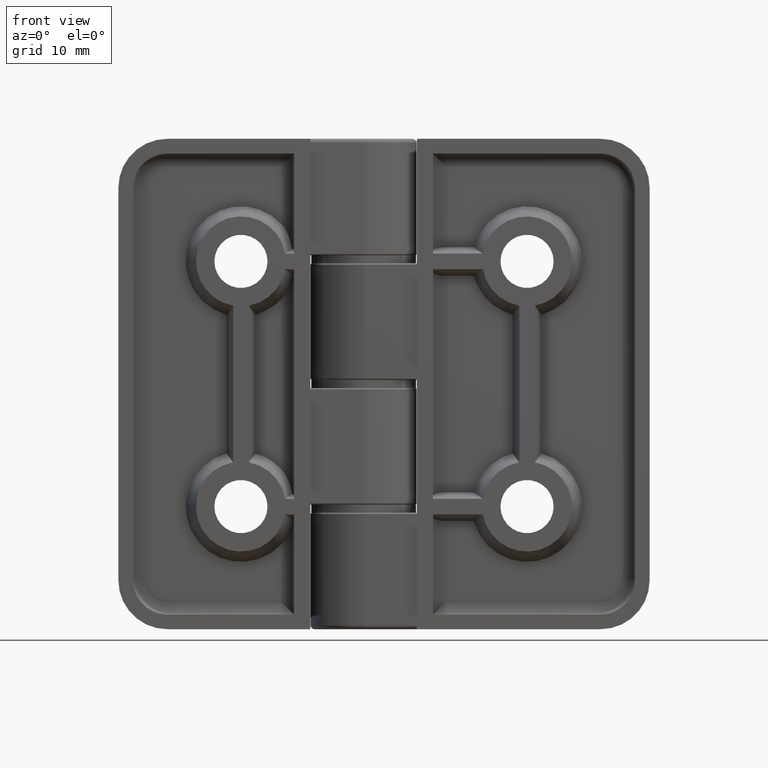
[diagram: clean part render]
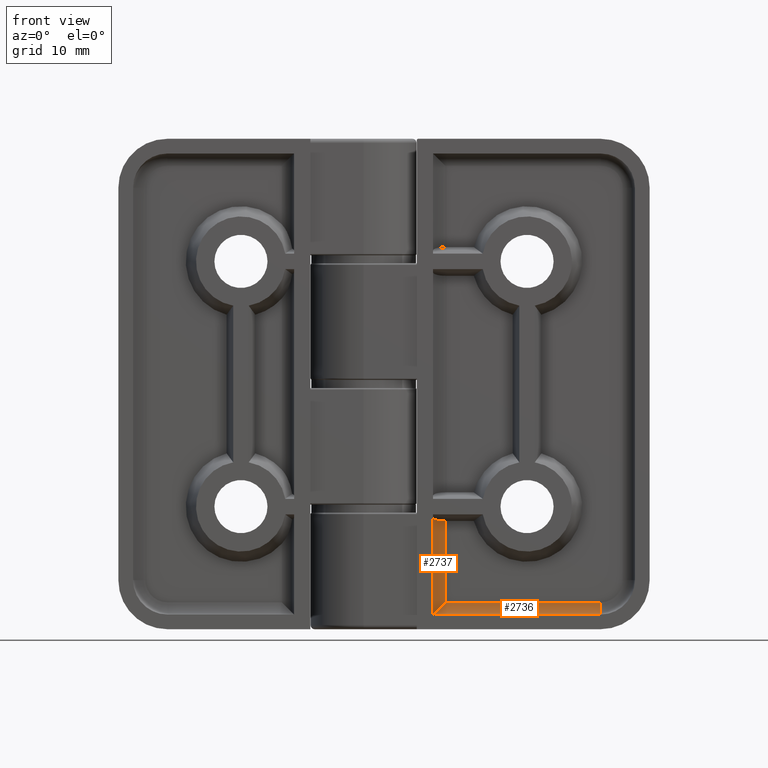
[diagram: same view with one multi-face feature highlighted, each face labeled with its STEP entity id]
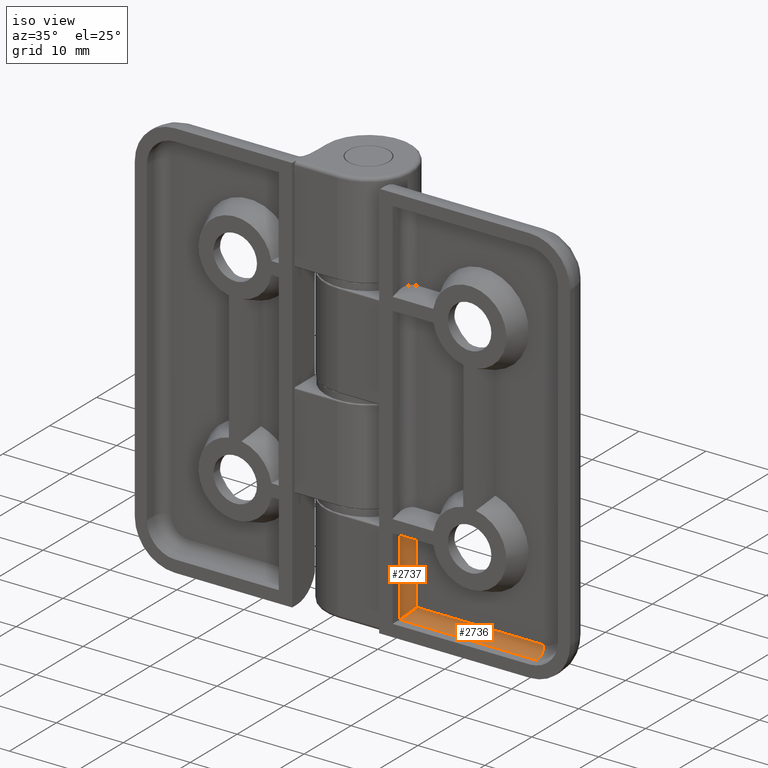
[diagram: same view with one multi-face feature highlighted, each face labeled with its STEP entity id]
A machine part, front view. The highlighted faces form ONE feature: a constant-radius fillet chain: 2 tangent blend faces with common blend radius 1.5 mm. The faces share edges in the B-rep.
A second angle (iso view) of the same feature is appended — it is thin or edge-on in the first view.
Their STEP definitions:
[1] entity #2737 (Cylinder):
#467=FACE_OUTER_BOUND('',#657,.T.);
#657=EDGE_LOOP('',(#2273,#2274,#2275,#2276));
#901=LINE('',#5180,#1079);
#902=LINE('',#5183,#1080);
#1079=VECTOR('',#3706,9.95);
#1080=VECTOR('',#3709,11.8519237886467);
#1138=ELLIPSE('',#3021,2.12132034355965,1.5);
#1139=ELLIPSE('',#3023,1.55291427061512,1.5);
#1330=VERTEX_POINT('',#5173);
#1331=VERTEX_POINT('',#5175);
#1332=VERTEX_POINT('',#5179);
#1333=VERTEX_POINT('',#5181);
#1668=EDGE_CURVE('',#1331,#1330,#1138,.T.);
#1669=EDGE_CURVE('',#1331,#1332,#901,.T.);
#1670=EDGE_CURVE('',#1333,#1332,#1139,.T.);
#1671=EDGE_CURVE('',#1333,#1330,#902,.T.);
#2273=ORIENTED_EDGE('',*,*,#1669,.T.);
#2274=ORIENTED_EDGE('',*,*,#1670,.F.);
#2275=ORIENTED_EDGE('',*,*,#1671,.T.);
#2276=ORIENTED_EDGE('',*,*,#1668,.F.);
#2612=CYLINDRICAL_SURFACE('',#3022,1.5);
#2737=ADVANCED_FACE('',(#467),#2612,.F.);
#3021=AXIS2_PLACEMENT_3D('',#5177,#3702,#3703);
#3022=AXIS2_PLACEMENT_3D('',#5178,#3704,#3705);
#3023=AXIS2_PLACEMENT_3D('',#5182,#3707,#3708);
#3702=DIRECTION('center_axis',(0.707106781186547,0.,-0.707106781186548));
#3703=DIRECTION('ref_axis',(-0.707106781186548,-6.28036983473509E-16,-0.707106781186547));
#3704=DIRECTION('center_axis',(9.84240270057763E-18,4.37090483832564E-33,
-1.));
#3705=DIRECTION('ref_axis',(0.707106781186548,0.707106781186547,6.95962969274724E-18));
#3706=DIRECTION('',(9.84240270057763E-18,4.37090483832564E-33,-1.));
#3707=DIRECTION('center_axis',(3.51633040578987E-17,-0.258819045102521,
0.965925826289068));
#3708=DIRECTION('ref_axis',(3.57464364142068E-16,0.965925826289068,0.258819045102521));
#3709=DIRECTION('',(-9.84240270057763E-18,-4.37090483832564E-33,1.));
#5173=CARTESIAN_POINT('',(-8.5,-5.5,28.2));
#5175=CARTESIAN_POINT('',(-10.,-4.,26.7));
#5177=CARTESIAN_POINT('Origin',(-10.,-5.5,26.7));
#5178=CARTESIAN_POINT('Origin',(-10.,-5.5,14.1));
#5179=CARTESIAN_POINT('',(-10.,-4.,16.75));
#5180=CARTESIAN_POINT('',(-10.,-4.,14.1));
#5181=CARTESIAN_POINT('',(-8.5,-5.5,16.3480762113533));
#5182=CARTESIAN_POINT('Origin',(-10.,-5.5,16.3480762113533));
#5183=CARTESIAN_POINT('',(-8.5,-5.5,14.1));
[2] entity #2736 (Cylinder):
#284=CIRCLE('',#3017,1.5);
#466=FACE_OUTER_BOUND('',#656,.T.);
#656=EDGE_LOOP('',(#2269,#2270,#2271,#2272));
#899=LINE('',#5174,#1077);
#900=LINE('',#5176,#1078);
#1077=VECTOR('',#3700,20.5);
#1078=VECTOR('',#3701,19.);
#1138=ELLIPSE('',#3021,2.12132034355965,1.5);
#1328=VERTEX_POINT('',#5167);
#1329=VERTEX_POINT('',#5168);
#1330=VERTEX_POINT('',#5173);
#1331=VERTEX_POINT('',#5175);
#1663=EDGE_CURVE('',#1328,#1329,#284,.T.);
#1666=EDGE_CURVE('',#1330,#1329,#899,.T.);
#1667=EDGE_CURVE('',#1328,#1331,#900,.T.);
#1668=EDGE_CURVE('',#1331,#1330,#1138,.T.);
#2269=ORIENTED_EDGE('',*,*,#1666,.T.);
#2270=ORIENTED_EDGE('',*,*,#1663,.F.);
#2271=ORIENTED_EDGE('',*,*,#1667,.T.);
#2272=ORIENTED_EDGE('',*,*,#1668,.T.);
#2611=CYLINDRICAL_SURFACE('',#3020,1.5);
#2736=ADVANCED_FACE('',(#466),#2611,.F.);
#3017=AXIS2_PLACEMENT_3D('',#5169,#3692,#3693);
#3020=AXIS2_PLACEMENT_3D('',#5172,#3698,#3699);
#3021=AXIS2_PLACEMENT_3D('',#5177,#3702,#3703);
#3692=DIRECTION('center_axis',(1.,0.,0.));
#3693=DIRECTION('ref_axis',(0.,1.,0.));
#3698=DIRECTION('center_axis',(1.,4.44089209850063E-16,4.33257765707378E-16));
#3699=DIRECTION('ref_axis',(-6.20377995870175E-16,0.707106781186549,0.707106781186546));
#3700=DIRECTION('',(-1.,-4.44089209850063E-16,-4.33257765707378E-16));
#3701=DIRECTION('',(1.,4.44089209850063E-16,4.33257765707378E-16));
#3702=DIRECTION('center_axis',(0.707106781186547,0.,-0.707106781186548));
#3703=DIRECTION('ref_axis',(-0.707106781186548,-6.28036983473509E-16,-0.707106781186547));
#5167=CARTESIAN_POINT('',(-29.,-4.00000000000001,26.7));
#5168=CARTESIAN_POINT('',(-29.,-5.50000000000001,28.2));
#5169=CARTESIAN_POINT('Origin',(-29.,-5.50000000000001,26.7));
#5172=CARTESIAN_POINT('Origin',(-24.6586459408214,-5.50000000000001,26.7));
#5173=CARTESIAN_POINT('',(-8.5,-5.5,28.2));
#5174=CARTESIAN_POINT('',(-24.6586459408214,-5.50000000000001,28.2));
#5175=CARTESIAN_POINT('',(-10.,-4.,26.7));
#5176=CARTESIAN_POINT('',(-24.6586459408214,-4.00000000000001,26.7));
#5177=CARTESIAN_POINT('Origin',(-10.,-5.5,26.7));